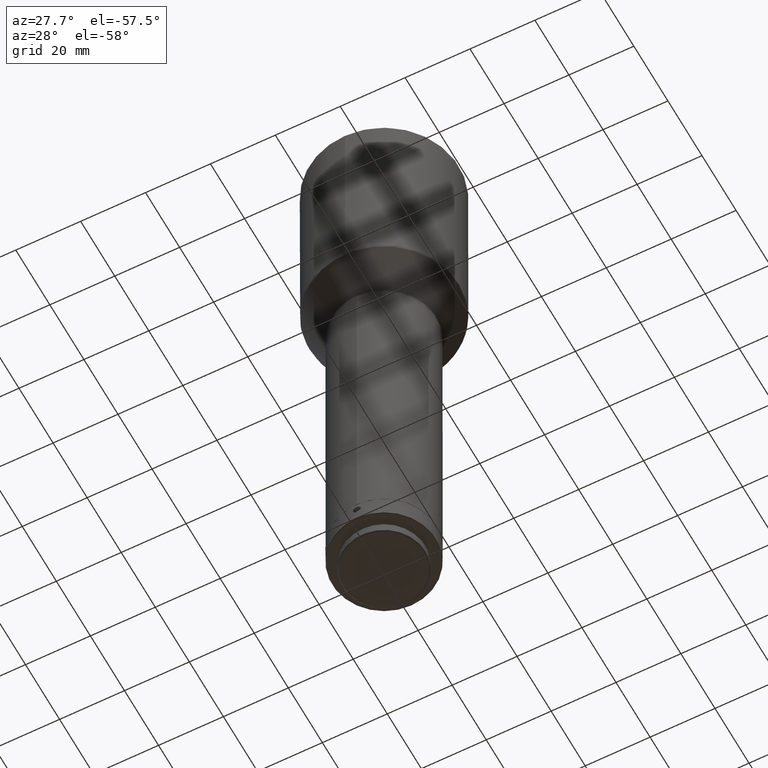
[diagram: clean part render]
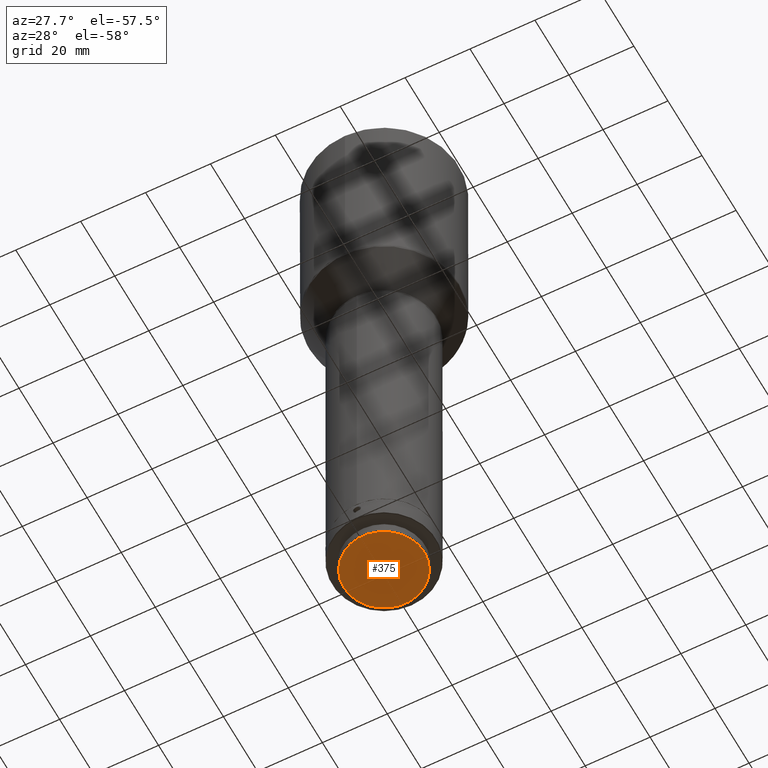
[diagram: same view with one face highlighted and labeled with its STEP entity id]
A machine part, auxiliary view. The second image highlights one B-rep face of the part: STEP entity #375.
In plain terms, the highlighted planar face has unit normal (-0, 0, 1).
Its self-contained STEP definition (entity closure, byte-faithful):
#218 = EDGE_LOOP ( 'NONE', ( #970 ) ) ;
#242 = DIRECTION ( 'NONE',  ( -0.000000000000000000, 0.000000000000000000, 1.000000000000000000 ) ) ;
#261 = AXIS2_PLACEMENT_3D ( 'NONE', #978, #242, #556 ) ;
#279 = EDGE_CURVE ( 'NONE', #716, #716, #944, .T. ) ;
#374 = DIRECTION ( 'NONE',  ( 0.000000000000000000, -0.000000000000000000, 1.000000000000000000 ) ) ;
#375 = ADVANCED_FACE ( 'NONE', ( #966 ), #635, .F. ) ;
#440 = DIRECTION ( 'NONE',  ( 1.000000000000000000, 0.000000000000000000, 0.000000000000000000 ) ) ;
#556 = DIRECTION ( 'NONE',  ( 1.000000000000000000, 0.000000000000000000, 0.000000000000000000 ) ) ;
#635 = PLANE ( 'NONE',  #261 ) ;
#716 = VERTEX_POINT ( 'NONE', #772 ) ;
#772 = CARTESIAN_POINT ( 'NONE',  ( 12.39999999999997904, -1.022782191296474780E-13, -858.7036269999998694 ) ) ;
#938 = CARTESIAN_POINT ( 'NONE',  ( -1.734723475976807094E-15, -1.022782191296474780E-13, -858.7036269999998694 ) ) ;
#944 = CIRCLE ( 'NONE', #994, 12.39999999999998082 ) ;
#966 = FACE_OUTER_BOUND ( 'NONE', #218, .T. ) ;
#970 = ORIENTED_EDGE ( 'NONE', *, *, #279, .F. ) ;
#978 = CARTESIAN_POINT ( 'NONE',  ( 2.164934898019055254E-15, 9.749999999999992895, -858.7036269999998694 ) ) ;
#994 = AXIS2_PLACEMENT_3D ( 'NONE', #938, #374, #440 ) ;